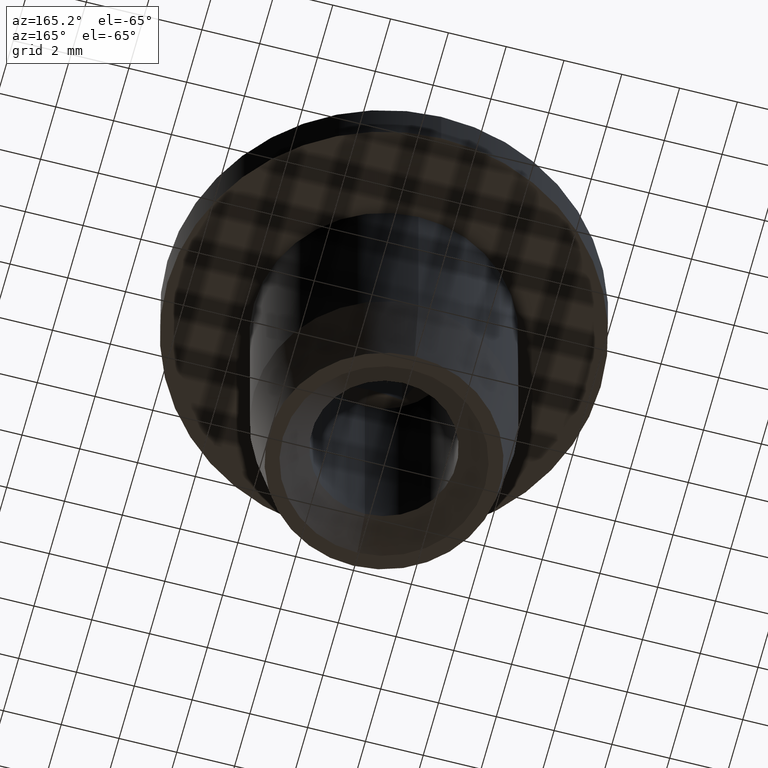
[diagram: clean part render]
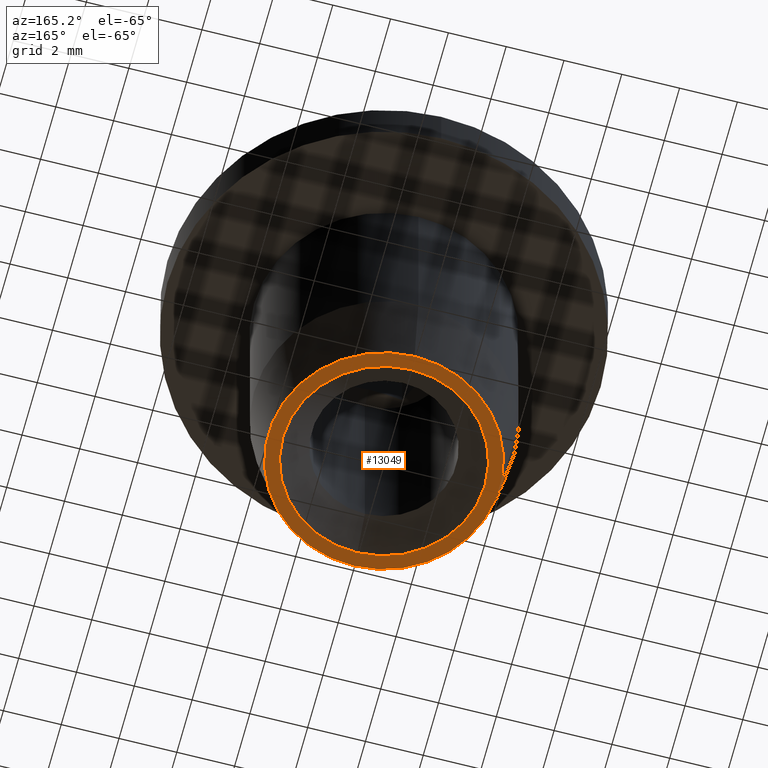
[diagram: same view with one face highlighted and labeled with its STEP entity id]
A machine part, auxiliary view. The second image highlights one B-rep face of the part: STEP entity #13049.
In plain terms, the highlighted planar face has unit normal (-0, 0, -1).
Its self-contained STEP definition (entity closure, byte-faithful):
#1442 = DIRECTION ( 'NONE',  ( 0.0000000000000000000, 1.000000000000000000, 4.336808689942036500E-016 ) ) ;
#1478 = EDGE_CURVE ( 'NONE', #16245, #11878, #6898, .T. ) ;
#2009 = DIRECTION ( 'NONE',  ( -0.0000000000000000000, 3.466407542334334500E-016, -1.000000000000000000 ) ) ;
#2664 = DIRECTION ( 'NONE',  ( -0.0000000000000000000, 3.466407542334334500E-016, -1.000000000000000000 ) ) ;
#2938 = EDGE_LOOP ( 'NONE', ( #13099, #15118 ) ) ;
#3247 = AXIS2_PLACEMENT_3D ( 'NONE', #8359, #2009, #5857 ) ;
#3559 = VERTEX_POINT ( 'NONE', #9428 ) ;
#4140 = AXIS2_PLACEMENT_3D ( 'NONE', #6216, #12513, #16279 ) ;
#5102 = DIRECTION ( 'NONE',  ( 0.0000000000000000000, -3.466407542334334500E-016, 1.000000000000000000 ) ) ;
#5215 = DIRECTION ( 'NONE',  ( 0.0000000000000000000, 1.000000000000000000, 2.478176394252578200E-016 ) ) ;
#5697 = FACE_BOUND ( 'NONE', #2938, .T. ) ;
#5734 = AXIS2_PLACEMENT_3D ( 'NONE', #15409, #5102, #5215 ) ;
#5756 = EDGE_CURVE ( 'NONE', #14329, #3559, #10859, .T. ) ;
#5857 = DIRECTION ( 'NONE',  ( 0.0000000000000000000, 1.000000000000000000, 4.336808689942036500E-016 ) ) ;
#6216 = CARTESIAN_POINT ( 'NONE',  ( 0.0000000000000000000, 2.114508600823944300E-015, -6.100000000000001400 ) ) ;
#6898 = CIRCLE ( 'NONE', #3247, 3.999999999999982700 ) ;
#7920 = CIRCLE ( 'NONE', #5734, 3.500000000000004400 ) ;
#8333 = CARTESIAN_POINT ( 'NONE',  ( 5.204748896376243800E-016, 3.999999999999985300, -6.099999999999999600 ) ) ;
#8359 = CARTESIAN_POINT ( 'NONE',  ( 0.0000000000000000000, 2.973754232521852100E-015, -6.100000000000001400 ) ) ;
#8413 = EDGE_CURVE ( 'NONE', #3559, #14329, #7920, .T. ) ;
#8931 = AXIS2_PLACEMENT_3D ( 'NONE', #8996, #2664, #1442 ) ;
#8996 = CARTESIAN_POINT ( 'NONE',  ( 0.0000000000000000000, 2.973754232521852100E-015, -6.100000000000001400 ) ) ;
#9148 = CIRCLE ( 'NONE', #8931, 3.999999999999982700 ) ;
#9428 = CARTESIAN_POINT ( 'NONE',  ( 0.0000000000000000000, 3.500000000000007100, -6.100000000000000500 ) ) ;
#9892 = DIRECTION ( 'NONE',  ( -0.0000000000000000000, 3.466407542334334500E-016, -1.000000000000000000 ) ) ;
#10351 = CARTESIAN_POINT ( 'NONE',  ( 4.286263797015741500E-016, -3.500000000000001800, -6.100000000000002300 ) ) ;
#10852 = AXIS2_PLACEMENT_3D ( 'NONE', #15090, #9892, #12601 ) ;
#10859 = CIRCLE ( 'NONE', #4140, 3.500000000000004400 ) ;
#11112 = PLANE ( 'NONE',  #10852 ) ;
#11165 = CARTESIAN_POINT ( 'NONE',  ( 0.0000000000000000000, -3.999999999999980000, -6.100000000000003200 ) ) ;
#11244 = FACE_OUTER_BOUND ( 'NONE', #15681, .T. ) ;
#11878 = VERTEX_POINT ( 'NONE', #8333 ) ;
#12283 = ORIENTED_EDGE ( 'NONE', *, *, #1478, .T. ) ;
#12513 = DIRECTION ( 'NONE',  ( 0.0000000000000000000, -3.466407542334334500E-016, 1.000000000000000000 ) ) ;
#12601 = DIRECTION ( 'NONE',  ( 0.0000000000000000000, 1.000000000000000000, 3.466407542334334500E-016 ) ) ;
#13049 = ADVANCED_FACE ( 'NONE', ( #5697, #11244 ), #11112, .T. ) ;
#13099 = ORIENTED_EDGE ( 'NONE', *, *, #8413, .T. ) ;
#14329 = VERTEX_POINT ( 'NONE', #10351 ) ;
#14659 = ORIENTED_EDGE ( 'NONE', *, *, #15403, .T. ) ;
#15090 = CARTESIAN_POINT ( 'NONE',  ( 0.0000000000000000000, 4.500000000000005300, -6.099999999999999600 ) ) ;
#15118 = ORIENTED_EDGE ( 'NONE', *, *, #5756, .T. ) ;
#15403 = EDGE_CURVE ( 'NONE', #11878, #16245, #9148, .T. ) ;
#15409 = CARTESIAN_POINT ( 'NONE',  ( 0.0000000000000000000, 2.114508600823944300E-015, -6.100000000000001400 ) ) ;
#15681 = EDGE_LOOP ( 'NONE', ( #12283, #14659 ) ) ;
#16245 = VERTEX_POINT ( 'NONE', #11165 ) ;
#16279 = DIRECTION ( 'NONE',  ( 0.0000000000000000000, 1.000000000000000000, 2.478176394252578200E-016 ) ) ;